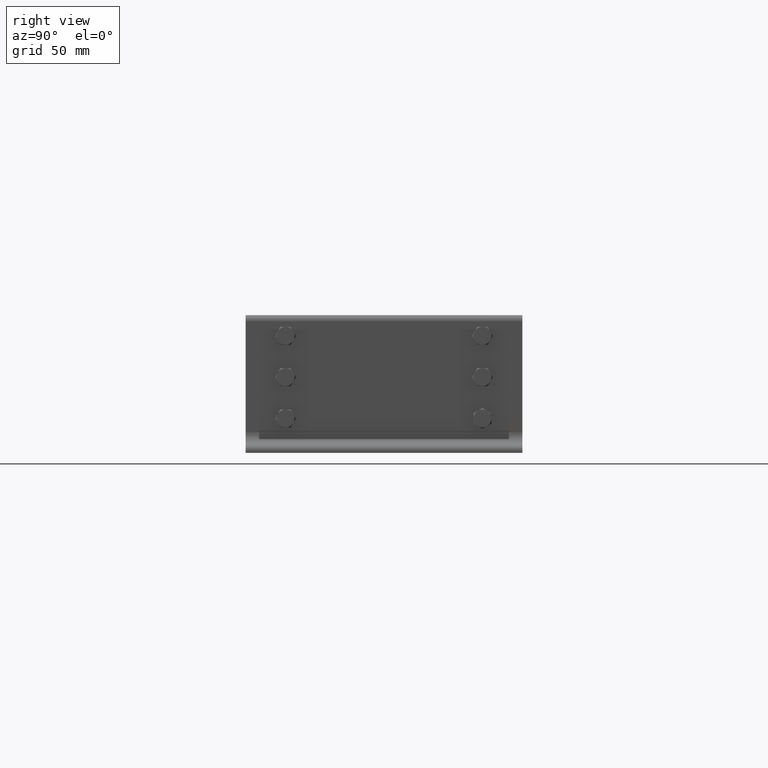
[diagram: clean part render]
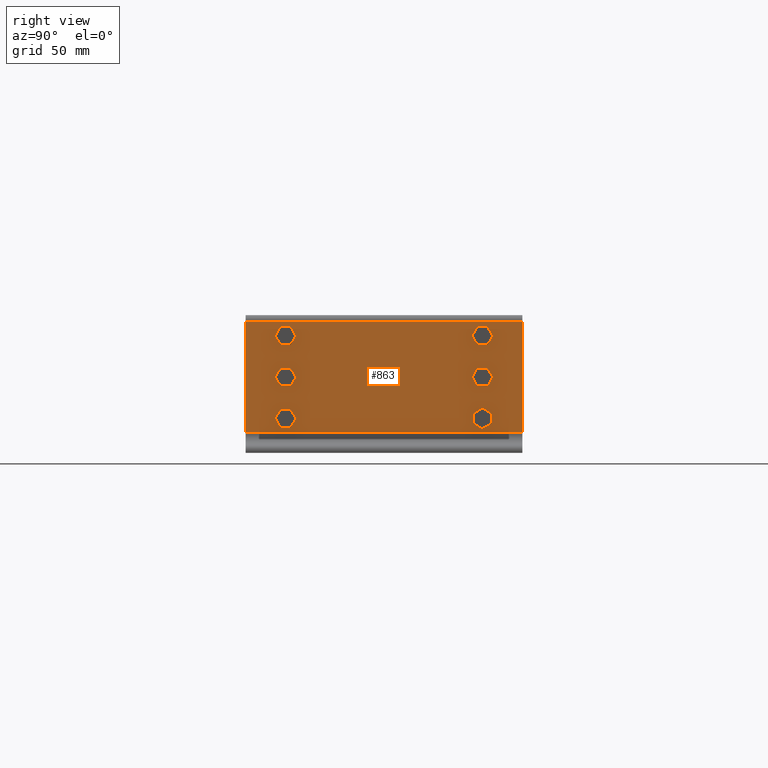
[diagram: same view with one face highlighted and labeled with its STEP entity id]
A machine part, right view. The second image highlights one B-rep face of the part: STEP entity #863.
In plain terms, the highlighted planar face has unit normal (1, -0, 0).
Its self-contained STEP definition (entity closure, byte-faithful):
#246=CARTESIAN_POINT('',(5.999999999999998,0.0,15.000000000000002));
#247=VERTEX_POINT('',#246);
#265=CARTESIAN_POINT('',(5.999999999999998,201.0,15.000000000000002));
#266=VERTEX_POINT('',#265);
#274=CARTESIAN_POINT('',(5.999999999999998,201.0,15.000000000000002));
#275=DIRECTION('',(0.0,-1.0,0.0));
#276=VECTOR('',#275,201.0);
#277=LINE('',#274,#276);
#278=EDGE_CURVE('',#266,#247,#277,.T.);
#392=CARTESIAN_POINT('',(6.000000000000022,0.0,95.5));
#393=VERTEX_POINT('',#392);
#394=CARTESIAN_POINT('',(5.999999999999999,0.0,15.000000000000004));
#395=DIRECTION('',(0.0,0.0,1.0));
#396=VECTOR('',#395,80.500000000000014);
#397=LINE('',#394,#396);
#398=EDGE_CURVE('',#247,#393,#397,.T.);
#440=CARTESIAN_POINT('',(6.000000000000022,201.0,95.5));
#441=VERTEX_POINT('',#440);
#458=CARTESIAN_POINT('',(6.000000000000022,0.0,95.5));
#459=DIRECTION('',(0.0,1.0,0.0));
#460=VECTOR('',#459,201.0);
#461=LINE('',#458,#460);
#462=EDGE_CURVE('',#393,#441,#461,.T.);
#496=CARTESIAN_POINT('',(6.000000000000023,172.00000000000003,59.249999999999986));
#497=VERTEX_POINT('',#496);
#498=CARTESIAN_POINT('',(6.000000000000023,172.00000000000003,55.0));
#499=DIRECTION('',(-1.0,0.0,0.0));
#500=DIRECTION('',(0.0,0.0,-1.0));
#501=AXIS2_PLACEMENT_3D('',#498,#499,#500);
#502=CIRCLE('',#501,4.249999999999989);
#503=EDGE_CURVE('',#497,#497,#502,.T.);
#524=CARTESIAN_POINT('',(6.000000000000023,29.000000000000004,89.249999999999986));
#525=VERTEX_POINT('',#524);
#526=CARTESIAN_POINT('',(6.000000000000023,29.000000000000004,85.0));
#527=DIRECTION('',(-1.0,0.0,0.0));
#528=DIRECTION('',(0.0,0.0,-1.0));
#529=AXIS2_PLACEMENT_3D('',#526,#527,#528);
#530=CIRCLE('',#529,4.249999999999997);
#531=EDGE_CURVE('',#525,#525,#530,.T.);
#552=CARTESIAN_POINT('',(6.000000000000023,29.000000000000014,29.250000000000004));
#553=VERTEX_POINT('',#552);
#554=CARTESIAN_POINT('',(6.000000000000023,29.000000000000014,25.0));
#555=DIRECTION('',(-1.0,0.0,0.0));
#556=DIRECTION('',(0.0,0.0,-1.0));
#557=AXIS2_PLACEMENT_3D('',#554,#555,#556);
#558=CIRCLE('',#557,4.250000000000001);
#559=EDGE_CURVE('',#553,#553,#558,.T.);
#580=CARTESIAN_POINT('',(6.000000000000023,29.000000000000004,59.25));
#581=VERTEX_POINT('',#580);
#582=CARTESIAN_POINT('',(6.000000000000023,29.000000000000004,55.0));
#583=DIRECTION('',(-1.0,0.0,0.0));
#584=DIRECTION('',(0.0,0.0,-1.0));
#585=AXIS2_PLACEMENT_3D('',#582,#583,#584);
#586=CIRCLE('',#585,4.25);
#587=EDGE_CURVE('',#581,#581,#586,.T.);
#608=CARTESIAN_POINT('',(6.000000000000023,172.00000000000003,29.249999999999989));
#609=VERTEX_POINT('',#608);
#610=CARTESIAN_POINT('',(6.000000000000023,172.00000000000003,25.0));
#611=DIRECTION('',(-1.0,0.0,0.0));
#612=DIRECTION('',(0.0,0.0,-1.0));
#613=AXIS2_PLACEMENT_3D('',#610,#611,#612);
#614=CIRCLE('',#613,4.249999999999989);
#615=EDGE_CURVE('',#609,#609,#614,.T.);
#636=CARTESIAN_POINT('',(6.000000000000023,172.00000000000003,89.249999999999986));
#637=VERTEX_POINT('',#636);
#638=CARTESIAN_POINT('',(6.000000000000023,172.00000000000003,85.0));
#639=DIRECTION('',(-1.0,0.0,0.0));
#640=DIRECTION('',(0.0,0.0,-1.0));
#641=AXIS2_PLACEMENT_3D('',#638,#639,#640);
#642=CIRCLE('',#641,4.249999999999991);
#643=EDGE_CURVE('',#637,#637,#642,.T.);
#829=CARTESIAN_POINT('',(6.000000000000023,0.0,100.0));
#830=DIRECTION('',(1.0,0.0,0.0));
#831=DIRECTION('',(0.0,0.0,-1.0));
#832=AXIS2_PLACEMENT_3D('',#829,#830,#831);
#833=PLANE('',#832);
#834=ORIENTED_EDGE('',*,*,#278,.F.);
#835=CARTESIAN_POINT('',(6.000000000000022,201.0,95.500000000000014));
#836=DIRECTION('',(0.0,0.0,-1.0));
#837=VECTOR('',#836,80.500000000000014);
#838=LINE('',#835,#837);
#839=EDGE_CURVE('',#441,#266,#838,.T.);
#840=ORIENTED_EDGE('',*,*,#839,.F.);
#841=ORIENTED_EDGE('',*,*,#462,.F.);
#842=ORIENTED_EDGE('',*,*,#398,.F.);
#843=EDGE_LOOP('',(#834,#840,#841,#842));
#844=FACE_OUTER_BOUND('',#843,.T.);
#845=ORIENTED_EDGE('',*,*,#503,.T.);
#846=EDGE_LOOP('',(#845));
#847=FACE_BOUND('',#846,.T.);
#848=ORIENTED_EDGE('',*,*,#531,.T.);
#849=EDGE_LOOP('',(#848));
#850=FACE_BOUND('',#849,.T.);
#851=ORIENTED_EDGE('',*,*,#559,.T.);
#852=EDGE_LOOP('',(#851));
#853=FACE_BOUND('',#852,.T.);
#854=ORIENTED_EDGE('',*,*,#587,.T.);
#855=EDGE_LOOP('',(#854));
#856=FACE_BOUND('',#855,.T.);
#857=ORIENTED_EDGE('',*,*,#615,.T.);
#858=EDGE_LOOP('',(#857));
#859=FACE_BOUND('',#858,.T.);
#860=ORIENTED_EDGE('',*,*,#643,.T.);
#861=EDGE_LOOP('',(#860));
#862=FACE_BOUND('',#861,.T.);
#863=ADVANCED_FACE('',(#844,#847,#850,#853,#856,#859,#862),#833,.T.);